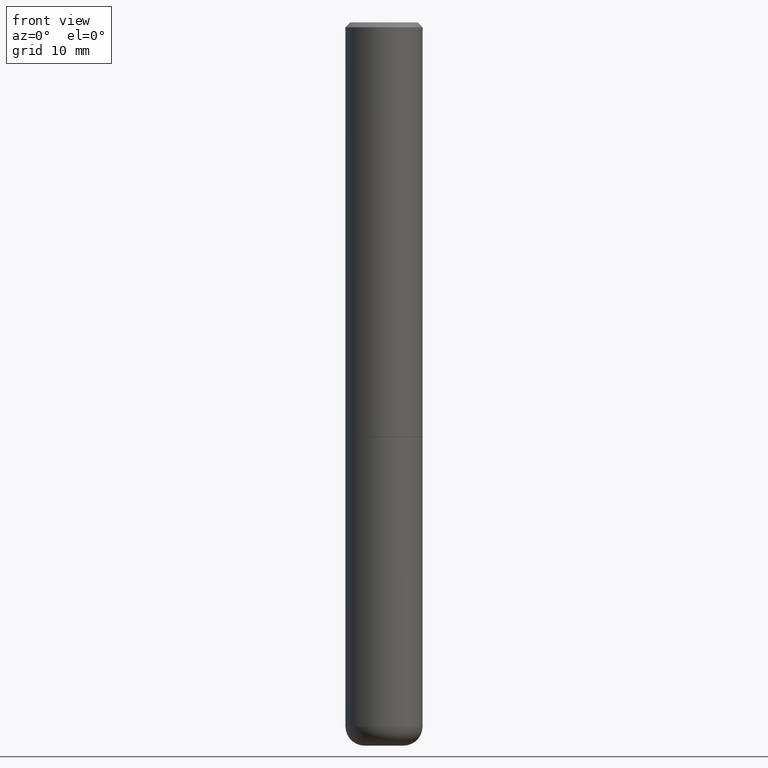
[diagram: clean part render]
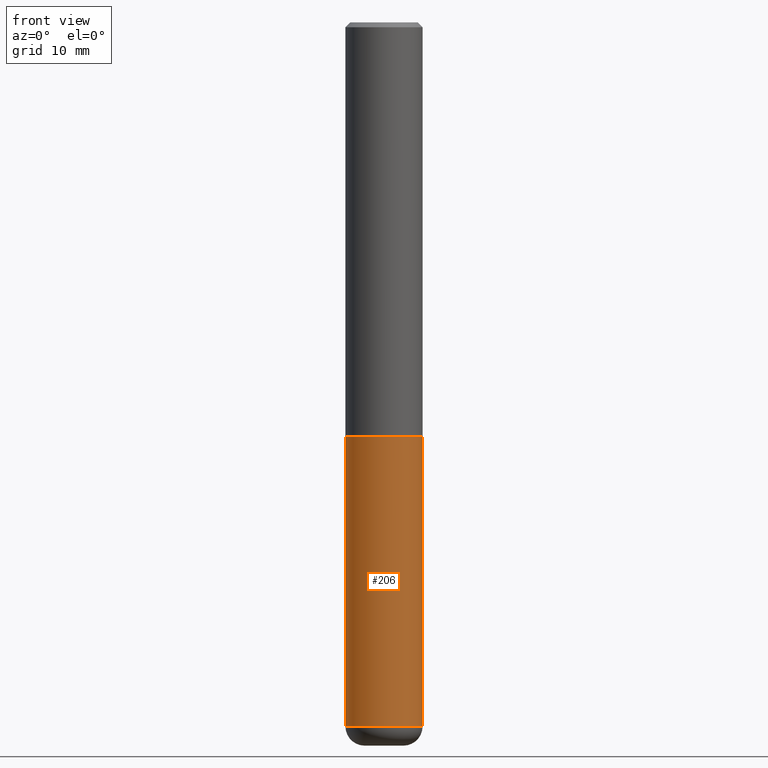
[diagram: same view with one face highlighted and labeled with its STEP entity id]
A machine part, front view. The second image highlights one B-rep face of the part: STEP entity #206.
In plain terms, the highlighted cylindrical surface (partial cylindrical patch) has radius 4.0005 mm, axis along (-0, 0, 1).
Its self-contained STEP definition (entity closure, byte-faithful):
#15 = EDGE_LOOP ( 'NONE', ( #31, #393, #85, #16 ) ) ;
#16 = ORIENTED_EDGE ( 'NONE', *, *, #243, .F. ) ;
#26 = VERTEX_POINT ( 'NONE', #196 ) ;
#27 = DIRECTION ( 'NONE',  ( 1.000000000000000000, -6.982962677686261977E-15, 0.000000000000000000 ) ) ;
#31 = ORIENTED_EDGE ( 'NONE', *, *, #131, .F. ) ;
#49 = VECTOR ( 'NONE', #113, 39.37007874015748143 ) ;
#67 = VERTEX_POINT ( 'NONE', #136 ) ;
#68 = DIRECTION ( 'NONE',  ( -2.445468806185136877E-29, 3.491481338843145188E-15, 1.000000000000000000 ) ) ;
#79 = CIRCLE ( 'NONE', #272, 0.1575000000000000011 ) ;
#85 = ORIENTED_EDGE ( 'NONE', *, *, #309, .T. ) ;
#113 = DIRECTION ( 'NONE',  ( -2.445468806185136877E-29, 3.491481338843145188E-15, 1.000000000000000000 ) ) ;
#131 = EDGE_CURVE ( 'NONE', #380, #26, #332, .T. ) ;
#136 = CARTESIAN_POINT ( 'NONE',  ( 0.1575000000000000011, -7.010894528397031278E-15, -1.692999999999999616 ) ) ;
#163 = CARTESIAN_POINT ( 'NONE',  ( 0.1575000000000000011, -1.099816621735586889E-15, 7.679978421878598033E-30 ) ) ;
#170 = VECTOR ( 'NONE', #68, 39.37007874015748143 ) ;
#175 = CARTESIAN_POINT ( 'NONE',  ( 0.000000000000000000, 0.000000000000000000, 0.000000000000000000 ) ) ;
#179 = CYLINDRICAL_SURFACE ( 'NONE', #305, 0.1575000000000000011 ) ;
#196 = CARTESIAN_POINT ( 'NONE',  ( -0.1575000000000000011, -6.853867402493107284E-15, -1.692999999999999616 ) ) ;
#205 = CARTESIAN_POINT ( 'NONE',  ( -0.1575000000000000011, 1.119104808822157801E-15, -7.747322767151475583E-30 ) ) ;
#206 = ADVANCED_FACE ( 'NONE', ( #369 ), #179, .T. ) ;
#207 = DIRECTION ( 'NONE',  ( -2.445468806185136597E-29, 3.491481338843145583E-15, 1.000000000000000000 ) ) ;
#211 = DIRECTION ( 'NONE',  ( -2.445468806185136597E-29, 3.491481338843145583E-15, 1.000000000000000000 ) ) ;
#232 = AXIS2_PLACEMENT_3D ( 'NONE', #363, #381, #27 ) ;
#243 = EDGE_CURVE ( 'NONE', #26, #67, #79, .T. ) ;
#272 = AXIS2_PLACEMENT_3D ( 'NONE', #364, #211, #404 ) ;
#303 = CARTESIAN_POINT ( 'NONE',  ( -0.1574999999999999456, -8.915761707146927585E-15, -2.874099999999999877 ) ) ;
#305 = AXIS2_PLACEMENT_3D ( 'NONE', #175, #207, #327 ) ;
#306 = EDGE_CURVE ( 'NONE', #380, #384, #402, .T. ) ;
#309 = EDGE_CURVE ( 'NONE', #384, #67, #358, .T. ) ;
#327 = DIRECTION ( 'NONE',  ( 1.000000000000000000, -6.982962677686265922E-15, 4.876176775795935232E-29 ) ) ;
#332 = LINE ( 'NONE', #205, #49 ) ;
#358 = LINE ( 'NONE', #163, #170 ) ;
#363 = CARTESIAN_POINT ( 'NONE',  ( 7.028521895856700897E-29, -1.003486651596908519E-14, -2.874099999999999877 ) ) ;
#364 = CARTESIAN_POINT ( 'NONE',  ( 4.140178688871434900E-29, -5.911077906661444587E-15, -1.692999999999999616 ) ) ;
#369 = FACE_OUTER_BOUND ( 'NONE', #15, .T. ) ;
#370 = CARTESIAN_POINT ( 'NONE',  ( 0.1574999999999999456, -1.113468313770467030E-14, -2.874099999999999877 ) ) ;
#380 = VERTEX_POINT ( 'NONE', #303 ) ;
#381 = DIRECTION ( 'NONE',  ( -2.445468806185136597E-29, 3.491481338843145583E-15, 1.000000000000000000 ) ) ;
#384 = VERTEX_POINT ( 'NONE', #370 ) ;
#393 = ORIENTED_EDGE ( 'NONE', *, *, #306, .T. ) ;
#402 = CIRCLE ( 'NONE', #232, 0.1575000000000000011 ) ;
#404 = DIRECTION ( 'NONE',  ( 1.000000000000000000, -6.982962677686268288E-15, 0.000000000000000000 ) ) ;